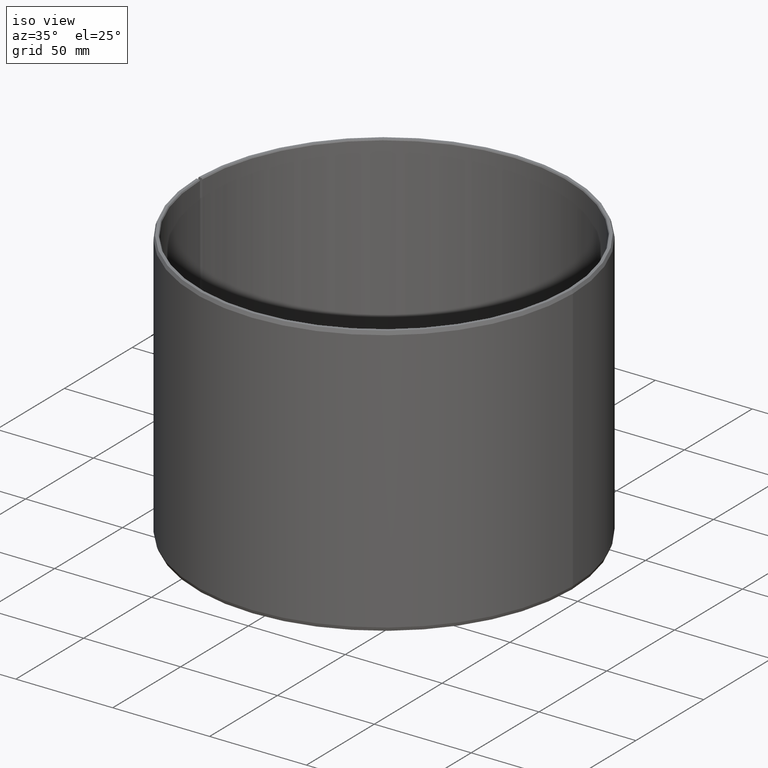
[diagram: clean part render]
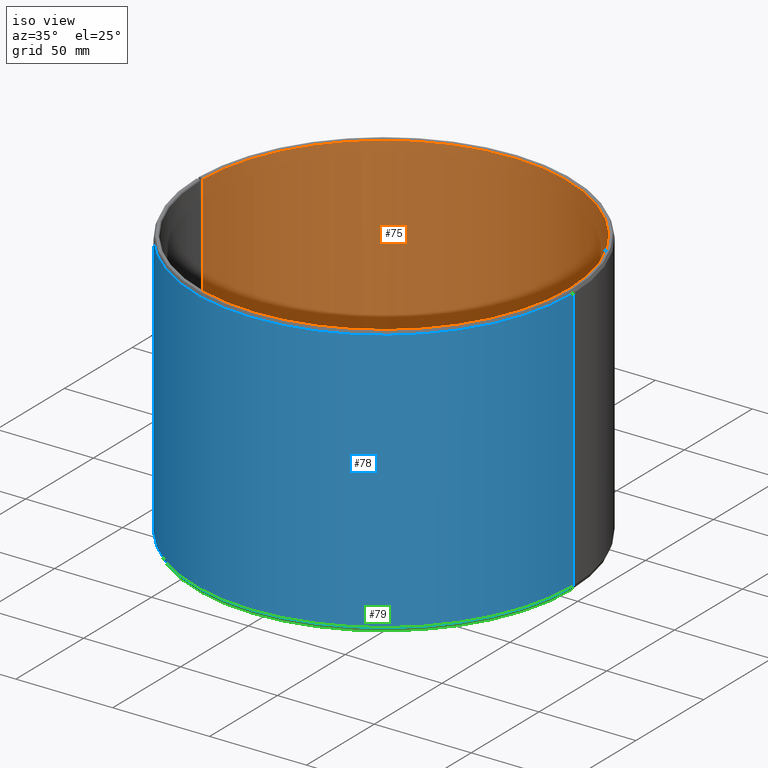
[diagram: same view with three faces highlighted in distinct colors, each labeled with its STEP entity id]
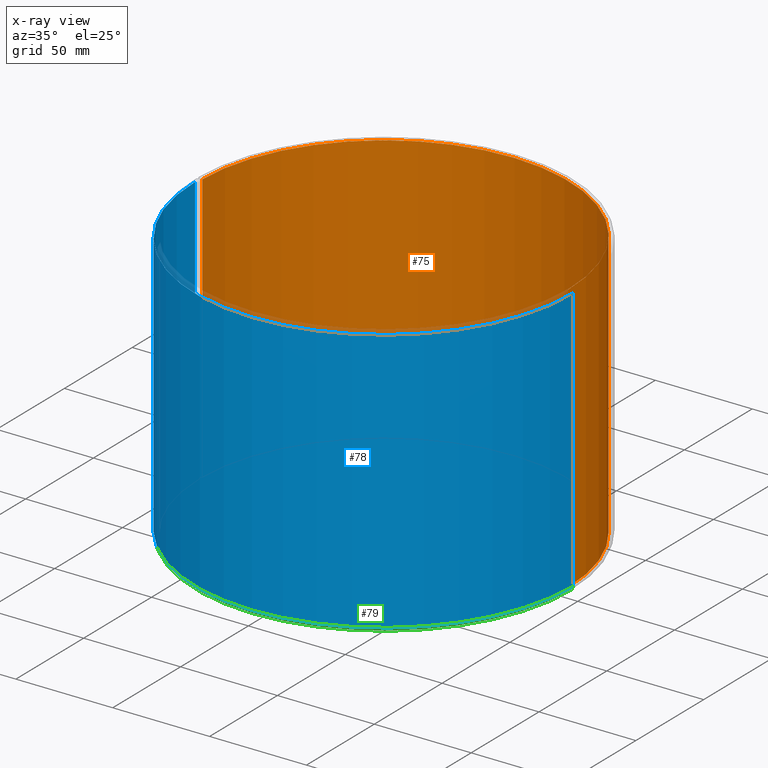
[diagram: x-ray of the same camera — body ghosted, the three highlighted faces saturated]
A machine part, iso view with three faces highlighted in distinct colors.
The next image is the same camera in x-ray (body ghosted, the three faces saturated) — at least one of them is partly hidden behind the body in this view.
Their STEP definitions:

[orange] entity #75 — the highlighted cylindrical surface (partial cylindrical patch) has radius 95 mm, axis along (0, -0, 1).
#75=ADVANCED_FACE('',(#92),#93,.F.);
#92=FACE_OUTER_BOUND('',#124,.T.);
#93=CYLINDRICAL_SURFACE('',#125,95.0);
#124=EDGE_LOOP('',(#156,#157,#158,#159));
#125=AXIS2_PLACEMENT_3D('',#160,#161,#162);
#156=ORIENTED_EDGE('',*,*,#280,.F.);
#157=ORIENTED_EDGE('',*,*,#281,.T.);
#158=ORIENTED_EDGE('',*,*,#282,.T.);
#159=ORIENTED_EDGE('',*,*,#283,.F.);
#160=CARTESIAN_POINT('',(3.87628124059588E-014,-4.36093420968868E-014,70.0));
#161=DIRECTION('',(5.48707263966375E-016,-6.09939603923743E-016,1.0));
#162=DIRECTION('',(-1.0,1.89882151931499E-015,5.48707263966376E-016));
#280=EDGE_CURVE('',#318,#319,#320,.T.);
#281=EDGE_CURVE('',#318,#321,#322,.T.);
#282=EDGE_CURVE('',#321,#323,#324,.T.);
#283=EDGE_CURVE('',#319,#323,#325,.T.);
#318=VERTEX_POINT('',#380);
#319=VERTEX_POINT('',#381);
#320=LINE('',#382,#383);
#321=VERTEX_POINT('',#384);
#322=CIRCLE('',#385,95.0);
#323=VERTEX_POINT('',#386);
#324=LINE('',#387,#388);
#325=CIRCLE('',#389,95.0);
#380=CARTESIAN_POINT('',(95.0,-2.7813433753949E-013,139.4));
#381=CARTESIAN_POINT('',(95.0,-1.9312872450793E-013,0.599999999999954));
#382=CARTESIAN_POINT('',(95.0,-2.3563153102371E-013,70.0));
#383=VECTOR('',#464,1.0);
#384=CARTESIAN_POINT('',(-94.9855310398571,1.65797861154203,139.4));
#385=AXIS2_PLACEMENT_3D('',#465,#466,#467);
#386=CARTESIAN_POINT('',(-94.9855310398572,1.65797861154212,0.600000000000059));
#387=CARTESIAN_POINT('',(-94.9855310398571,1.65797861154203,139.4));
#388=VECTOR('',#468,10.0);
#389=AXIS2_PLACEMENT_3D('',#469,#470,#471);
#464=DIRECTION('',(-5.48707263966375E-016,6.09939603923743E-016,-1.0));
#465=CARTESIAN_POINT('',(7.68430965252252E-014,-8.61305183146539E-014,139.4));
#466=DIRECTION('',(5.48707263966375E-016,-6.09939603923743E-016,1.0));
#467=DIRECTION('',(-1.0,1.89882151931499E-015,5.48707263966376E-016));
#468=DIRECTION('',(-8.04579354593488E-016,6.17163747650249E-016,-1.0));
#469=CARTESIAN_POINT('',(6.82528286692465E-016,-1.08816587911968E-015,0.600000000000006));
#470=DIRECTION('',(5.48707263966375E-016,-6.09939603923743E-016,1.0));
#471=DIRECTION('',(-1.0,1.89882151931499E-015,5.48707263966376E-016));

[blue] entity #78 — the highlighted cylindrical surface (partial cylindrical patch) has radius 97.5 mm, axis along (0, -0, 1).
#78=ADVANCED_FACE('',(#98),#99,.T.);
#98=FACE_OUTER_BOUND('',#130,.T.);
#99=CYLINDRICAL_SURFACE('',#131,97.5);
#130=EDGE_LOOP('',(#177,#178,#179,#180));
#131=AXIS2_PLACEMENT_3D('',#181,#182,#183);
#177=ORIENTED_EDGE('',*,*,#291,.F.);
#178=ORIENTED_EDGE('',*,*,#290,.F.);
#179=ORIENTED_EDGE('',*,*,#292,.F.);
#180=ORIENTED_EDGE('',*,*,#293,.T.);
#181=CARTESIAN_POINT('',(3.87628124059588E-014,-4.36093420968868E-014,70.0));
#182=DIRECTION('',(5.48707263966375E-016,-6.09939603923743E-016,1.0));
#183=DIRECTION('',(-1.0,1.89882151931499E-015,5.48707263966376E-016));
#290=EDGE_CURVE('',#336,#332,#338,.T.);
#291=EDGE_CURVE('',#332,#339,#340,.T.);
#292=EDGE_CURVE('',#341,#336,#342,.T.);
#293=EDGE_CURVE('',#341,#339,#343,.T.);
#332=VERTEX_POINT('',#398);
#336=VERTEX_POINT('',#403);
#338=CIRCLE('',#406,97.5);
#339=VERTEX_POINT('',#407);
#340=LINE('',#408,#409);
#341=VERTEX_POINT('',#410);
#342=LINE('',#411,#412);
#343=CIRCLE('',#413,97.5);
#398=CARTESIAN_POINT('',(97.5000000000001,-2.82282627509384E-013,138.2));
#403=CARTESIAN_POINT('',(-97.4999999999999,9.92439905125993E-014,138.2));
#406=AXIS2_PLACEMENT_3D('',#482,#483,#484);
#407=CARTESIAN_POINT('',(97.5,-1.98877128126739E-013,1.79999999999995));
#408=CARTESIAN_POINT('',(97.5,-2.40684746521784E-013,70.0));
#409=VECTOR('',#485,1.0);
#410=CARTESIAN_POINT('',(-97.5,1.82969445514614E-013,1.80000000000005));
#411=CARTESIAN_POINT('',(-97.5,1.82969445514614E-013,1.80000000000005));
#412=VECTOR('',#486,10.0);
#413=AXIS2_PLACEMENT_3D('',#487,#488,#489);
#482=CARTESIAN_POINT('',(7.61846478084656E-014,-8.54720695978942E-014,138.2));
#483=DIRECTION('',(5.48707263966375E-016,-6.09939603923743E-016,1.0));
#484=DIRECTION('',(-1.0,1.89882151931499E-015,5.48707263966376E-016));
#485=DIRECTION('',(-5.48707263966375E-016,6.09939603923743E-016,-1.0));
#486=DIRECTION('',(8.09170143643831E-016,-6.1382298388574E-016,1.0));
#487=CARTESIAN_POINT('',(1.34097700345211E-015,-1.74661459587933E-015,1.8));
#488=DIRECTION('',(5.48707263966375E-016,-6.09939603923743E-016,1.0));
#489=DIRECTION('',(-1.0,1.89882151931499E-015,5.48707263966376E-016));

[green] entity #79 — the highlighted conical surface has half-angle 20 deg.
#79=ADVANCED_FACE('',(#100),#101,.T.);
#100=FACE_OUTER_BOUND('',#132,.T.);
#101=CONICAL_SURFACE('',#133,97.1724267891604,0.349065850398863);
#132=EDGE_LOOP('',(#184,#185,#186,#187));
#133=AXIS2_PLACEMENT_3D('',#188,#189,#190);
#184=ORIENTED_EDGE('',*,*,#294,.F.);
#185=ORIENTED_EDGE('',*,*,#293,.F.);
#186=ORIENTED_EDGE('',*,*,#295,.F.);
#187=ORIENTED_EDGE('',*,*,#296,.T.);
#188=CARTESIAN_POINT('',(8.47140465882374E-016,-1.25277805830959E-015,0.9));
#189=DIRECTION('',(5.48707263966375E-016,-6.09939603923743E-016,1.0));
#190=DIRECTION('',(-1.0,1.89882151931499E-015,5.48707263966376E-016));
#293=EDGE_CURVE('',#341,#339,#343,.T.);
#294=EDGE_CURVE('',#339,#344,#345,.T.);
#295=EDGE_CURVE('',#346,#341,#347,.T.);
#296=EDGE_CURVE('',#346,#344,#348,.T.);
#339=VERTEX_POINT('',#407);
#341=VERTEX_POINT('',#410);
#343=CIRCLE('',#413,97.5);
#344=VERTEX_POINT('',#414);
#345=LINE('',#415,#416);
#346=VERTEX_POINT('',#417);
#347=LINE('',#418,#419);
#348=CIRCLE('',#420,96.8448535783209);
#407=CARTESIAN_POINT('',(97.5,-1.98877128126739E-013,1.79999999999995));
#410=CARTESIAN_POINT('',(-97.5,1.82969445514614E-013,1.80000000000005));
#413=AXIS2_PLACEMENT_3D('',#487,#488,#489);
#414=CARTESIAN_POINT('',(96.8448535783209,-1.96454998419061E-013,-5.1696184704172E-014));
#415=CARTESIAN_POINT('',(97.1724267891604,-1.976660632729E-013,0.899999999999947));
#416=VECTOR('',#490,1.0);
#417=CARTESIAN_POINT('',(-96.8448535783209,1.83044172071121E-013,5.5325396245719E-014));
#418=CARTESIAN_POINT('',(-96.8448535783209,1.83044172071121E-013,5.5325396245719E-014));
#419=VECTOR('',#491,10.0);
#420=AXIS2_PLACEMENT_3D('',#492,#493,#494);
#487=CARTESIAN_POINT('',(1.34097700345211E-015,-1.74661459587933E-015,1.8));
#488=DIRECTION('',(5.48707263966375E-016,-6.09939603923743E-016,1.0));
#489=DIRECTION('',(-1.0,1.89882151931499E-015,5.48707263966376E-016));
#490=DIRECTION('',(-0.342020143325666,1.26447634049496E-015,-0.939692620785909));
#491=DIRECTION('',(-0.342020143325665,1.3381904126514E-016,0.93969262078591));
#492=CARTESIAN_POINT('',(3.53303928312638E-016,-7.58941520739854E-016,1.40055521273414E-015));
#493=DIRECTION('',(5.48707263966375E-016,-6.09939603923743E-016,1.0));
#494=DIRECTION('',(-1.0,1.89882151931499E-015,5.48707263966376E-016));